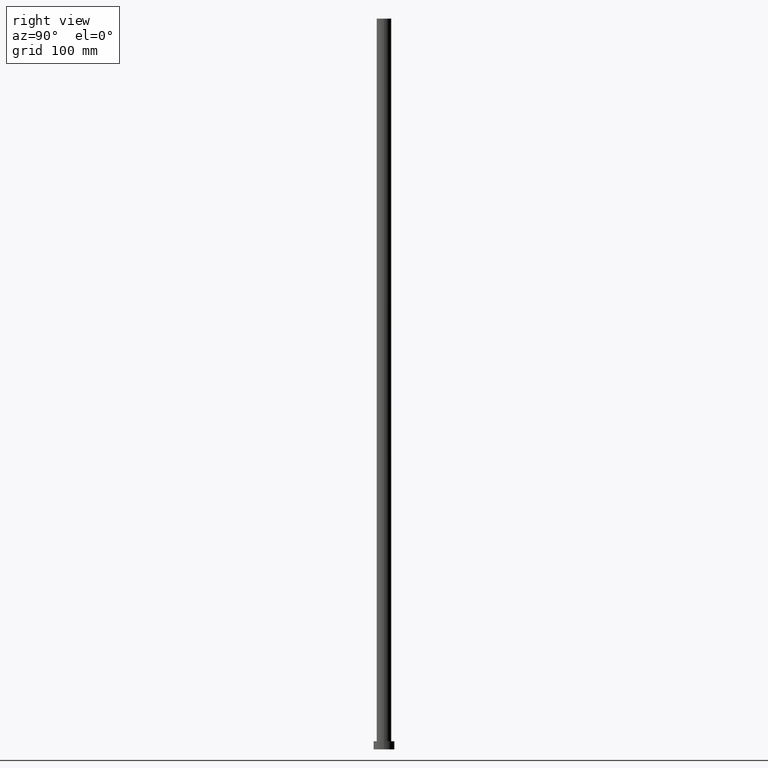
[diagram: clean part render]
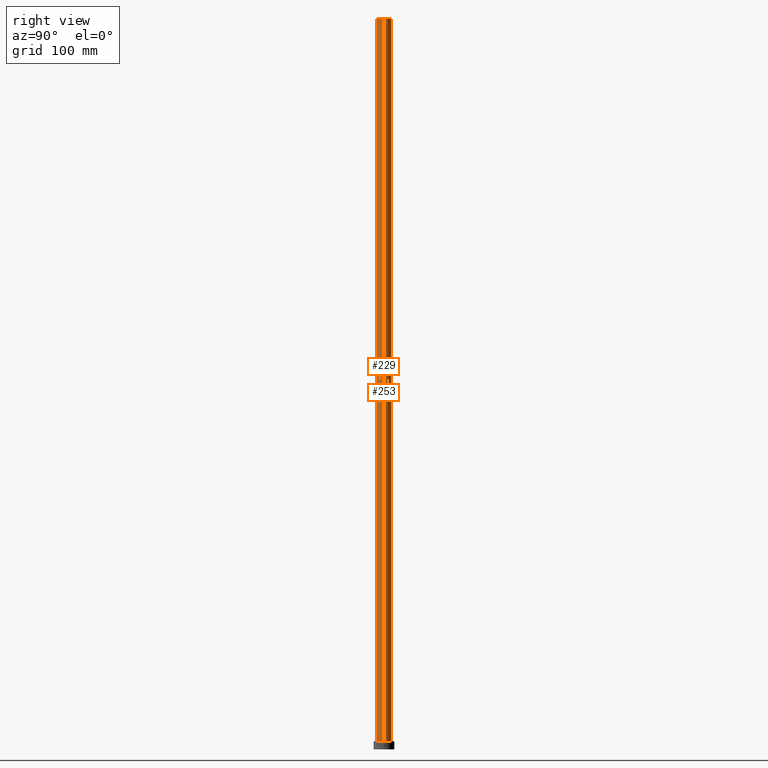
[diagram: same view with one multi-face feature highlighted, each face labeled with its STEP entity id]
A machine part, right view. The highlighted faces form ONE feature: a constant-radius fillet chain: 2 tangent blend faces with common blend radius 6.25 mm. The faces share edges in the B-rep.
Their STEP definitions:
[1] entity #253 (Cylinder):
#10 = CARTESIAN_POINT ( 'NONE',  ( 0.000000000000000000, 0.000000000000000000, 630.0000000000000000 ) ) ;
#11 = ORIENTED_EDGE ( 'NONE', *, *, #185, .F. ) ;
#13 = VERTEX_POINT ( 'NONE', #249 ) ;
#21 = CIRCLE ( 'NONE', #193, 6.250000000000000000 ) ;
#44 = CARTESIAN_POINT ( 'NONE',  ( -6.250000000000000000, 0.000000000000000000, 630.0000000000000000 ) ) ;
#46 = EDGE_CURVE ( 'NONE', #197, #13, #161, .T. ) ;
#60 = AXIS2_PLACEMENT_3D ( 'NONE', #10, #122, #101 ) ;
#68 = EDGE_CURVE ( 'NONE', #99, #80, #21, .T. ) ;
#74 = CYLINDRICAL_SURFACE ( 'NONE', #135, 6.250000000000000000 ) ;
#79 = ORIENTED_EDGE ( 'NONE', *, *, #151, .T. ) ;
#80 = VERTEX_POINT ( 'NONE', #160 ) ;
#81 = DIRECTION ( 'NONE',  ( 1.000000000000000000, 0.000000000000000000, 0.000000000000000000 ) ) ;
#82 = CARTESIAN_POINT ( 'NONE',  ( 0.000000000000000000, 0.000000000000000000, 7.000000000000000000 ) ) ;
#92 = DIRECTION ( 'NONE',  ( -1.000000000000000000, 0.000000000000000000, 0.000000000000000000 ) ) ;
#93 = ORIENTED_EDGE ( 'NONE', *, *, #46, .F. ) ;
#99 = VERTEX_POINT ( 'NONE', #190 ) ;
#101 = DIRECTION ( 'NONE',  ( 1.000000000000000000, 0.000000000000000000, 0.000000000000000000 ) ) ;
#122 = DIRECTION ( 'NONE',  ( 0.000000000000000000, 0.000000000000000000, 1.000000000000000000 ) ) ;
#135 = AXIS2_PLACEMENT_3D ( 'NONE', #191, #153, #92 ) ;
#149 = LINE ( 'NONE', #44, #221 ) ;
#151 = EDGE_CURVE ( 'NONE', #197, #99, #223, .T. ) ;
#153 = DIRECTION ( 'NONE',  ( -0.000000000000000000, -0.000000000000000000, -1.000000000000000000 ) ) ;
#155 = EDGE_LOOP ( 'NONE', ( #93, #79, #234, #11 ) ) ;
#160 = CARTESIAN_POINT ( 'NONE',  ( -6.250000000000000000, 0.000000000000000000, 7.000000000000000000 ) ) ;
#161 = CIRCLE ( 'NONE', #60, 6.250000000000000000 ) ;
#165 = CARTESIAN_POINT ( 'NONE',  ( 6.250000000000000000, 7.654042494670957606E-16, 630.0000000000000000 ) ) ;
#179 = DIRECTION ( 'NONE',  ( -0.000000000000000000, -0.000000000000000000, -1.000000000000000000 ) ) ;
#185 = EDGE_CURVE ( 'NONE', #13, #80, #149, .T. ) ;
#190 = CARTESIAN_POINT ( 'NONE',  ( 6.250000000000000000, 7.654042494670957606E-16, 7.000000000000000000 ) ) ;
#191 = CARTESIAN_POINT ( 'NONE',  ( 0.000000000000000000, 0.000000000000000000, 630.0000000000000000 ) ) ;
#193 = AXIS2_PLACEMENT_3D ( 'NONE', #82, #199, #81 ) ;
#197 = VERTEX_POINT ( 'NONE', #165 ) ;
#199 = DIRECTION ( 'NONE',  ( 0.000000000000000000, 0.000000000000000000, 1.000000000000000000 ) ) ;
#205 = DIRECTION ( 'NONE',  ( -0.000000000000000000, -0.000000000000000000, -1.000000000000000000 ) ) ;
#216 = VECTOR ( 'NONE', #179, 1000.000000000000000 ) ;
#221 = VECTOR ( 'NONE', #205, 1000.000000000000000 ) ;
#223 = LINE ( 'NONE', #254, #216 ) ;
#230 = FACE_OUTER_BOUND ( 'NONE', #155, .T. ) ;
#234 = ORIENTED_EDGE ( 'NONE', *, *, #68, .T. ) ;
#249 = CARTESIAN_POINT ( 'NONE',  ( -6.250000000000000000, 0.000000000000000000, 630.0000000000000000 ) ) ;
#253 = ADVANCED_FACE ( 'NONE', ( #230 ), #74, .T. ) ;
#254 = CARTESIAN_POINT ( 'NONE',  ( 6.250000000000000000, 7.654042494670957606E-16, 630.0000000000000000 ) ) ;
[2] entity #229 (Cylinder):
#13 = VERTEX_POINT ( 'NONE', #249 ) ;
#16 = EDGE_CURVE ( 'NONE', #80, #99, #34, .T. ) ;
#34 = CIRCLE ( 'NONE', #166, 6.250000000000000000 ) ;
#35 = EDGE_LOOP ( 'NONE', ( #140, #116, #36, #95 ) ) ;
#36 = ORIENTED_EDGE ( 'NONE', *, *, #185, .T. ) ;
#42 = AXIS2_PLACEMENT_3D ( 'NONE', #107, #67, #110 ) ;
#44 = CARTESIAN_POINT ( 'NONE',  ( -6.250000000000000000, 0.000000000000000000, 630.0000000000000000 ) ) ;
#55 = CIRCLE ( 'NONE', #109, 6.250000000000000000 ) ;
#59 = CARTESIAN_POINT ( 'NONE',  ( 0.000000000000000000, 0.000000000000000000, 7.000000000000000000 ) ) ;
#67 = DIRECTION ( 'NONE',  ( -0.000000000000000000, -0.000000000000000000, -1.000000000000000000 ) ) ;
#80 = VERTEX_POINT ( 'NONE', #160 ) ;
#86 = CYLINDRICAL_SURFACE ( 'NONE', #42, 6.250000000000000000 ) ;
#95 = ORIENTED_EDGE ( 'NONE', *, *, #16, .T. ) ;
#99 = VERTEX_POINT ( 'NONE', #190 ) ;
#105 = DIRECTION ( 'NONE',  ( 0.000000000000000000, 0.000000000000000000, 1.000000000000000000 ) ) ;
#107 = CARTESIAN_POINT ( 'NONE',  ( 0.000000000000000000, 0.000000000000000000, 630.0000000000000000 ) ) ;
#109 = AXIS2_PLACEMENT_3D ( 'NONE', #240, #105, #132 ) ;
#110 = DIRECTION ( 'NONE',  ( -1.000000000000000000, 0.000000000000000000, 0.000000000000000000 ) ) ;
#116 = ORIENTED_EDGE ( 'NONE', *, *, #207, .F. ) ;
#132 = DIRECTION ( 'NONE',  ( 1.000000000000000000, 0.000000000000000000, 0.000000000000000000 ) ) ;
#140 = ORIENTED_EDGE ( 'NONE', *, *, #151, .F. ) ;
#149 = LINE ( 'NONE', #44, #221 ) ;
#151 = EDGE_CURVE ( 'NONE', #197, #99, #223, .T. ) ;
#160 = CARTESIAN_POINT ( 'NONE',  ( -6.250000000000000000, 0.000000000000000000, 7.000000000000000000 ) ) ;
#165 = CARTESIAN_POINT ( 'NONE',  ( 6.250000000000000000, 7.654042494670957606E-16, 630.0000000000000000 ) ) ;
#166 = AXIS2_PLACEMENT_3D ( 'NONE', #59, #214, #238 ) ;
#179 = DIRECTION ( 'NONE',  ( -0.000000000000000000, -0.000000000000000000, -1.000000000000000000 ) ) ;
#184 = FACE_OUTER_BOUND ( 'NONE', #35, .T. ) ;
#185 = EDGE_CURVE ( 'NONE', #13, #80, #149, .T. ) ;
#190 = CARTESIAN_POINT ( 'NONE',  ( 6.250000000000000000, 7.654042494670957606E-16, 7.000000000000000000 ) ) ;
#197 = VERTEX_POINT ( 'NONE', #165 ) ;
#205 = DIRECTION ( 'NONE',  ( -0.000000000000000000, -0.000000000000000000, -1.000000000000000000 ) ) ;
#207 = EDGE_CURVE ( 'NONE', #13, #197, #55, .T. ) ;
#214 = DIRECTION ( 'NONE',  ( 0.000000000000000000, 0.000000000000000000, 1.000000000000000000 ) ) ;
#216 = VECTOR ( 'NONE', #179, 1000.000000000000000 ) ;
#221 = VECTOR ( 'NONE', #205, 1000.000000000000000 ) ;
#223 = LINE ( 'NONE', #254, #216 ) ;
#229 = ADVANCED_FACE ( 'NONE', ( #184 ), #86, .T. ) ;
#238 = DIRECTION ( 'NONE',  ( 1.000000000000000000, 0.000000000000000000, 0.000000000000000000 ) ) ;
#240 = CARTESIAN_POINT ( 'NONE',  ( 0.000000000000000000, 0.000000000000000000, 630.0000000000000000 ) ) ;
#249 = CARTESIAN_POINT ( 'NONE',  ( -6.250000000000000000, 0.000000000000000000, 630.0000000000000000 ) ) ;
#254 = CARTESIAN_POINT ( 'NONE',  ( 6.250000000000000000, 7.654042494670957606E-16, 630.0000000000000000 ) ) ;